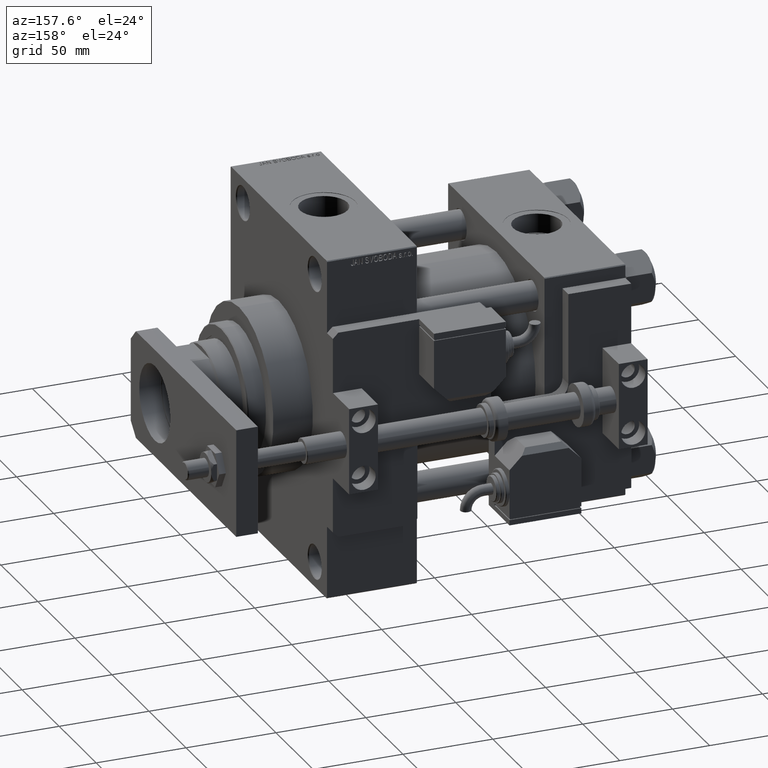
[diagram: clean part render]
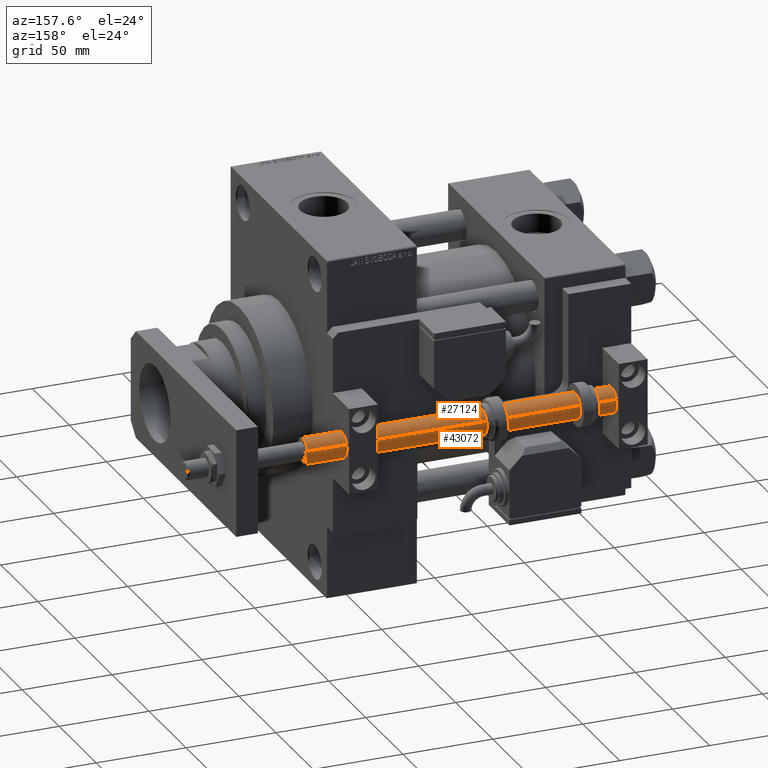
[diagram: same view with one multi-face feature highlighted, each face labeled with its STEP entity id]
A machine part, auxiliary view. The highlighted faces form ONE feature: a constant-radius fillet chain: 2 tangent blend faces with common blend radius 7 mm. The faces share edges in the B-rep.
Their STEP definitions:
[1] entity #27124 (Cylinder):
#2011 = ORIENTED_EDGE ( 'NONE', *, *, #23423, .T. ) ;
#2098 = VERTEX_POINT ( 'NONE', #29730 ) ;
#2981 = EDGE_CURVE ( 'NONE', #52624, #31671, #32585, .T. ) ;
#3230 = DIRECTION ( 'NONE',  ( -0.000000000000000000, -0.000000000000000000, 1.000000000000000000 ) ) ;
#4607 = CYLINDRICAL_SURFACE ( 'NONE', #51112, 7.000000000000000000 ) ;
#4923 = LINE ( 'NONE', #21157, #31138 ) ;
#6716 = DIRECTION ( 'NONE',  ( 1.000000000000000000, 0.000000000000000000, 0.000000000000000000 ) ) ;
#8181 = DIRECTION ( 'NONE',  ( -0.000000000000000000, -0.000000000000000000, -1.000000000000000000 ) ) ;
#8246 = ORIENTED_EDGE ( 'NONE', *, *, #2981, .F. ) ;
#8728 = DIRECTION ( 'NONE',  ( -0.000000000000000000, -0.000000000000000000, -1.000000000000000000 ) ) ;
#12725 = FACE_OUTER_BOUND ( 'NONE', #35035, .T. ) ;
#12818 = VERTEX_POINT ( 'NONE', #21261 ) ;
#14709 = ORIENTED_EDGE ( 'NONE', *, *, #52452, .T. ) ;
#17933 = CIRCLE ( 'NONE', #30934, 7.000000000000000000 ) ;
#21157 = CARTESIAN_POINT ( 'NONE',  ( -7.000000000000000000, 0.000000000000000000, 188.0000000000000000 ) ) ;
#21261 = CARTESIAN_POINT ( 'NONE',  ( -7.000000000000000000, 0.000000000000000000, 0.3000000000000224709 ) ) ;
#23423 = EDGE_CURVE ( 'NONE', #52624, #12818, #4923, .T. ) ;
#23771 = DIRECTION ( 'NONE',  ( 1.000000000000000000, 0.000000000000000000, 0.000000000000000000 ) ) ;
#27124 = ADVANCED_FACE ( 'NONE', ( #12725 ), #4607, .T. ) ;
#29730 = CARTESIAN_POINT ( 'NONE',  ( 7.000000000000000000, 8.572527594031473190E-16, 0.3000000000000224709 ) ) ;
#30934 = AXIS2_PLACEMENT_3D ( 'NONE', #48087, #3230, #23771 ) ;
#31138 = VECTOR ( 'NONE', #8728, 1000.000000000000000 ) ;
#31671 = VERTEX_POINT ( 'NONE', #34007 ) ;
#32585 = CIRCLE ( 'NONE', #53279, 7.000000000000000000 ) ;
#34007 = CARTESIAN_POINT ( 'NONE',  ( 7.000000000000000000, 8.572527594031473190E-16, 188.0000000000000000 ) ) ;
#35035 = EDGE_LOOP ( 'NONE', ( #50246, #8246, #2011, #14709 ) ) ;
#37952 = VECTOR ( 'NONE', #8181, 1000.000000000000000 ) ;
#38115 = CARTESIAN_POINT ( 'NONE',  ( 7.000000000000000000, 8.572527594031473190E-16, 188.0000000000000000 ) ) ;
#38921 = CARTESIAN_POINT ( 'NONE',  ( 0.000000000000000000, 0.000000000000000000, 188.0000000000000000 ) ) ;
#40585 = CARTESIAN_POINT ( 'NONE',  ( 0.000000000000000000, 0.000000000000000000, 188.0000000000000000 ) ) ;
#42157 = LINE ( 'NONE', #38115, #37952 ) ;
#42700 = EDGE_CURVE ( 'NONE', #31671, #2098, #42157, .T. ) ;
#43237 = DIRECTION ( 'NONE',  ( 0.000000000000000000, 0.000000000000000000, 1.000000000000000000 ) ) ;
#44893 = DIRECTION ( 'NONE',  ( -0.000000000000000000, -0.000000000000000000, -1.000000000000000000 ) ) ;
#45158 = DIRECTION ( 'NONE',  ( -1.000000000000000000, 0.000000000000000000, 0.000000000000000000 ) ) ;
#48087 = CARTESIAN_POINT ( 'NONE',  ( 0.000000000000000000, 0.000000000000000000, 0.3000000000000224709 ) ) ;
#50246 = ORIENTED_EDGE ( 'NONE', *, *, #42700, .F. ) ;
#51112 = AXIS2_PLACEMENT_3D ( 'NONE', #40585, #44893, #45158 ) ;
#52452 = EDGE_CURVE ( 'NONE', #12818, #2098, #17933, .T. ) ;
#52624 = VERTEX_POINT ( 'NONE', #53217 ) ;
#53217 = CARTESIAN_POINT ( 'NONE',  ( -7.000000000000000000, 0.000000000000000000, 188.0000000000000000 ) ) ;
#53279 = AXIS2_PLACEMENT_3D ( 'NONE', #38921, #43237, #6716 ) ;
[2] entity #43072 (Cylinder):
#2098 = VERTEX_POINT ( 'NONE', #29730 ) ;
#4923 = LINE ( 'NONE', #21157, #31138 ) ;
#5027 = DIRECTION ( 'NONE',  ( 1.000000000000000000, 0.000000000000000000, 0.000000000000000000 ) ) ;
#7763 = DIRECTION ( 'NONE',  ( 1.000000000000000000, 0.000000000000000000, 0.000000000000000000 ) ) ;
#8095 = ORIENTED_EDGE ( 'NONE', *, *, #12788, .F. ) ;
#8181 = DIRECTION ( 'NONE',  ( -0.000000000000000000, -0.000000000000000000, -1.000000000000000000 ) ) ;
#8728 = DIRECTION ( 'NONE',  ( -0.000000000000000000, -0.000000000000000000, -1.000000000000000000 ) ) ;
#12788 = EDGE_CURVE ( 'NONE', #31671, #52624, #41479, .T. ) ;
#12818 = VERTEX_POINT ( 'NONE', #21261 ) ;
#14971 = CIRCLE ( 'NONE', #49439, 7.000000000000000000 ) ;
#17274 = AXIS2_PLACEMENT_3D ( 'NONE', #19657, #36150, #7763 ) ;
#17469 = DIRECTION ( 'NONE',  ( -0.000000000000000000, -0.000000000000000000, 1.000000000000000000 ) ) ;
#19657 = CARTESIAN_POINT ( 'NONE',  ( 0.000000000000000000, 0.000000000000000000, 188.0000000000000000 ) ) ;
#21157 = CARTESIAN_POINT ( 'NONE',  ( -7.000000000000000000, 0.000000000000000000, 188.0000000000000000 ) ) ;
#21261 = CARTESIAN_POINT ( 'NONE',  ( -7.000000000000000000, 0.000000000000000000, 0.3000000000000224709 ) ) ;
#23423 = EDGE_CURVE ( 'NONE', #52624, #12818, #4923, .T. ) ;
#23906 = EDGE_LOOP ( 'NONE', ( #8095, #32096, #49956, #27596 ) ) ;
#24621 = AXIS2_PLACEMENT_3D ( 'NONE', #50553, #50031, #42213 ) ;
#24926 = FACE_OUTER_BOUND ( 'NONE', #23906, .T. ) ;
#27596 = ORIENTED_EDGE ( 'NONE', *, *, #23423, .F. ) ;
#29730 = CARTESIAN_POINT ( 'NONE',  ( 7.000000000000000000, 8.572527594031473190E-16, 0.3000000000000224709 ) ) ;
#29778 = EDGE_CURVE ( 'NONE', #2098, #12818, #14971, .T. ) ;
#31138 = VECTOR ( 'NONE', #8728, 1000.000000000000000 ) ;
#31671 = VERTEX_POINT ( 'NONE', #34007 ) ;
#32096 = ORIENTED_EDGE ( 'NONE', *, *, #42700, .T. ) ;
#34007 = CARTESIAN_POINT ( 'NONE',  ( 7.000000000000000000, 8.572527594031473190E-16, 188.0000000000000000 ) ) ;
#36150 = DIRECTION ( 'NONE',  ( 0.000000000000000000, 0.000000000000000000, 1.000000000000000000 ) ) ;
#37952 = VECTOR ( 'NONE', #8181, 1000.000000000000000 ) ;
#38115 = CARTESIAN_POINT ( 'NONE',  ( 7.000000000000000000, 8.572527594031473190E-16, 188.0000000000000000 ) ) ;
#41423 = CYLINDRICAL_SURFACE ( 'NONE', #24621, 7.000000000000000000 ) ;
#41479 = CIRCLE ( 'NONE', #17274, 7.000000000000000000 ) ;
#42157 = LINE ( 'NONE', #38115, #37952 ) ;
#42213 = DIRECTION ( 'NONE',  ( -1.000000000000000000, 0.000000000000000000, 0.000000000000000000 ) ) ;
#42700 = EDGE_CURVE ( 'NONE', #31671, #2098, #42157, .T. ) ;
#43072 = ADVANCED_FACE ( 'NONE', ( #24926 ), #41423, .T. ) ;
#49439 = AXIS2_PLACEMENT_3D ( 'NONE', #50154, #17469, #5027 ) ;
#49956 = ORIENTED_EDGE ( 'NONE', *, *, #29778, .T. ) ;
#50031 = DIRECTION ( 'NONE',  ( -0.000000000000000000, -0.000000000000000000, -1.000000000000000000 ) ) ;
#50154 = CARTESIAN_POINT ( 'NONE',  ( 0.000000000000000000, 0.000000000000000000, 0.3000000000000224709 ) ) ;
#50553 = CARTESIAN_POINT ( 'NONE',  ( 0.000000000000000000, 0.000000000000000000, 188.0000000000000000 ) ) ;
#52624 = VERTEX_POINT ( 'NONE', #53217 ) ;
#53217 = CARTESIAN_POINT ( 'NONE',  ( -7.000000000000000000, 0.000000000000000000, 188.0000000000000000 ) ) ;